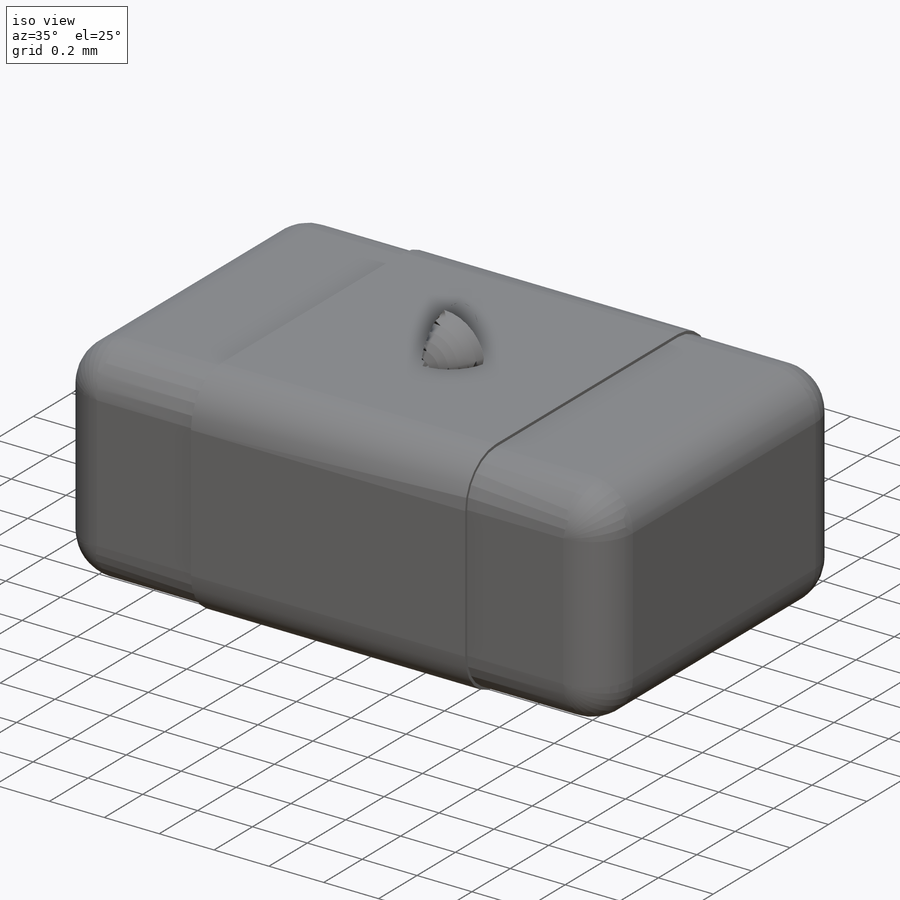
[diagram: iso view]
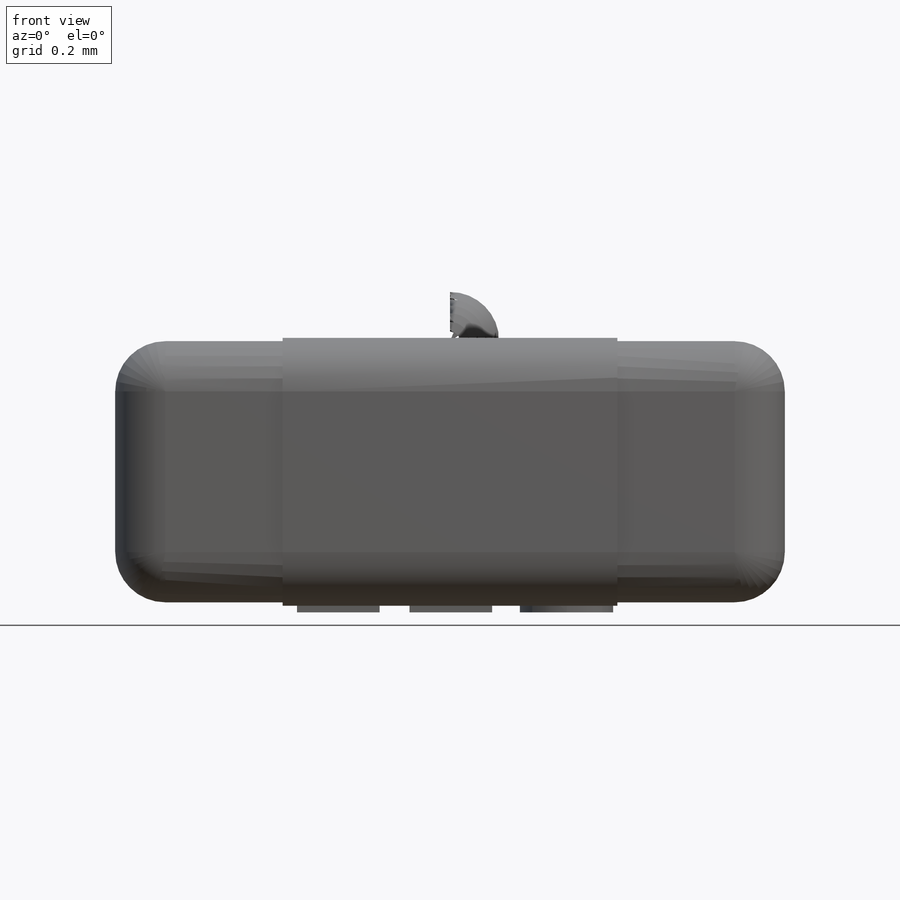
[diagram: front view]
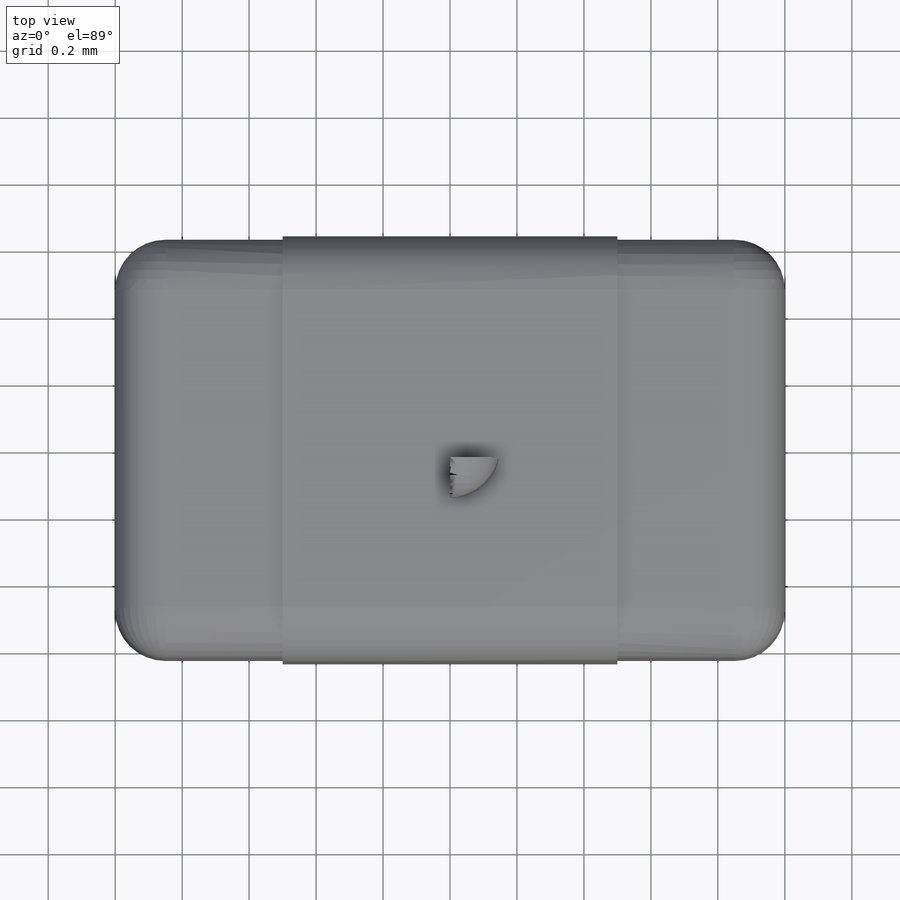
[diagram: top view]
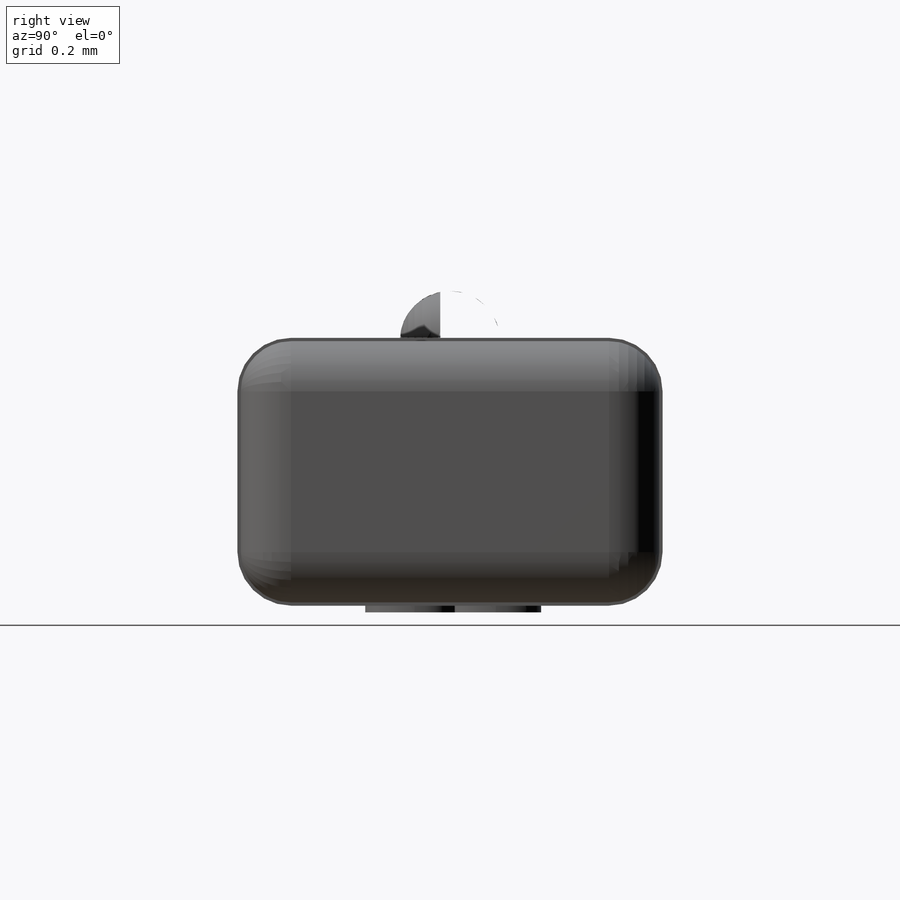
[diagram: right view]
SOLIDWORKS PART (.sldprt)
format: sldprt  version: not decoded by parser v0  size: 667,136 bytes
history: native  units: mm
features: plane x3, sketch x3, extrude x3, material x1, fillet x1 (+10 scaffold rows collapsed)
feature tree (21):
  scaffold x10  (default folders/planes/origin — collapsed)
  material  "Aço inoxidável fundido"
  plane  "Plano frontal"
  plane  "Plano superior"
  plane  "Plano direito"
  sketch  "Esboço1"
  extrude  "Ressalto-extrusão1"  Depth=0.78mm
  fillet  "Filete1"  Radius=0.15mm
  sketch  "Esboço4"  dims[D1=0.01mm]
  extrude  "Ressalto-extrusão4"  Depth=0.5mm
  sketch  "Esboço2"  dims[D1=0.5mm]
  extrude  "Ressalto-extrusão5"  Depth=0.02mm
decode coverage: 6 of 7 modeling features carry decoded parameters
note: suppression state not decoded; provenance and decode notes live in map.json
